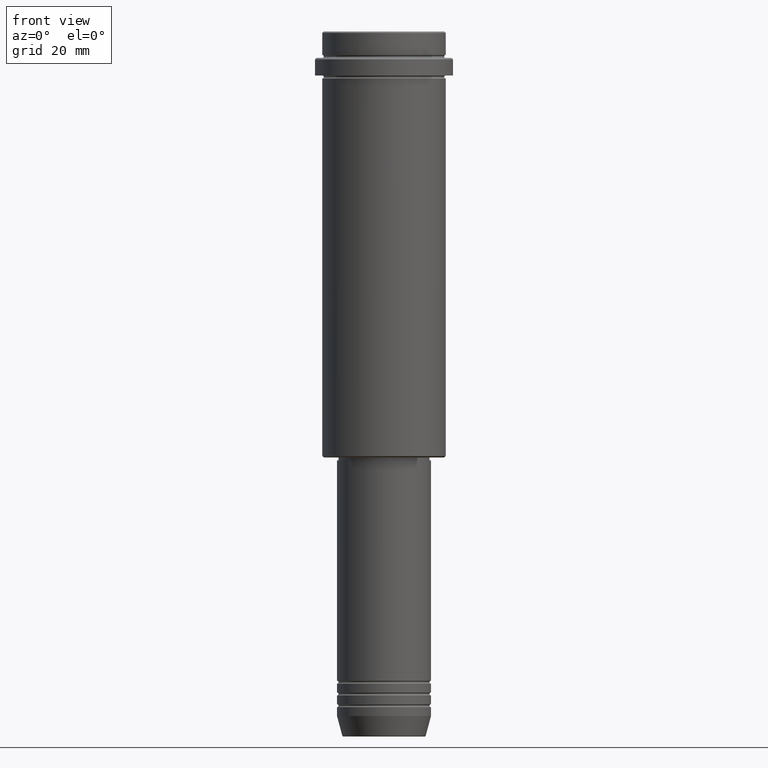
[diagram: clean part render]
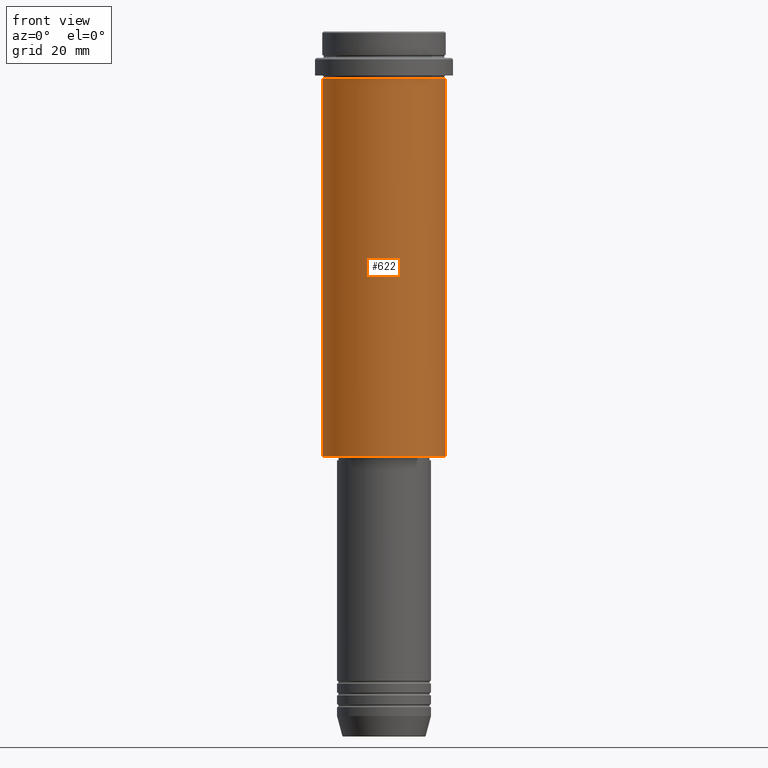
[diagram: same view with one face highlighted and labeled with its STEP entity id]
A machine part, front view. The second image highlights one B-rep face of the part: STEP entity #622.
In plain terms, the highlighted cylindrical surface (partial cylindrical patch) has radius 21 mm, axis along (-0, -0, 1).
Its self-contained STEP definition (entity closure, byte-faithful):
#2 = CYLINDRICAL_SURFACE ( 'NONE', #464, 21.00000000000000000 ) ;
#15 = DIRECTION ( 'NONE',  ( -0.000000000000000000, -0.000000000000000000, 1.000000000000000000 ) ) ;
#89 = VECTOR ( 'NONE', #1295, 1000.000000000000000 ) ;
#143 = EDGE_LOOP ( 'NONE', ( #727, #1248, #1281, #395 ) ) ;
#223 = VERTEX_POINT ( 'NONE', #1283 ) ;
#286 = EDGE_CURVE ( 'NONE', #1156, #672, #956, .T. ) ;
#339 = DIRECTION ( 'NONE',  ( -1.000000000000000000, 0.000000000000000000, 0.000000000000000000 ) ) ;
#349 = DIRECTION ( 'NONE',  ( -0.000000000000000000, -0.000000000000000000, 1.000000000000000000 ) ) ;
#353 = CARTESIAN_POINT ( 'NONE',  ( -21.00000000000000000, 2.571758278209441661E-15, -144.5000000000000000 ) ) ;
#395 = ORIENTED_EDGE ( 'NONE', *, *, #286, .F. ) ;
#398 = AXIS2_PLACEMENT_3D ( 'NONE', #400, #536, #705 ) ;
#400 = CARTESIAN_POINT ( 'NONE',  ( 0.000000000000000000, 0.000000000000000000, -16.00000000000000355 ) ) ;
#441 = CARTESIAN_POINT ( 'NONE',  ( 0.000000000000000000, 0.000000000000000000, 0.000000000000000000 ) ) ;
#449 = CARTESIAN_POINT ( 'NONE',  ( -21.00000000000000000, 2.571758278209441661E-15, 0.000000000000000000 ) ) ;
#454 = EDGE_CURVE ( 'NONE', #527, #223, #667, .T. ) ;
#464 = AXIS2_PLACEMENT_3D ( 'NONE', #441, #15, #862 ) ;
#527 = VERTEX_POINT ( 'NONE', #353 ) ;
#536 = DIRECTION ( 'NONE',  ( -0.000000000000000000, -0.000000000000000000, 1.000000000000000000 ) ) ;
#608 = CARTESIAN_POINT ( 'NONE',  ( -21.00000000000000000, 2.571758278209441661E-15, -16.00000000000000355 ) ) ;
#622 = ADVANCED_FACE ( 'NONE', ( #1079 ), #2, .T. ) ;
#667 = CIRCLE ( 'NONE', #869, 21.00000000000000000 ) ;
#672 = VERTEX_POINT ( 'NONE', #1030 ) ;
#705 = DIRECTION ( 'NONE',  ( 1.000000000000000000, 0.000000000000000000, 0.000000000000000000 ) ) ;
#727 = ORIENTED_EDGE ( 'NONE', *, *, #1336, .F. ) ;
#767 = CARTESIAN_POINT ( 'NONE',  ( 21.00000000000000000, 0.000000000000000000, 0.000000000000000000 ) ) ;
#809 = VECTOR ( 'NONE', #349, 1000.000000000000000 ) ;
#855 = LINE ( 'NONE', #767, #89 ) ;
#862 = DIRECTION ( 'NONE',  ( 1.000000000000000000, 0.000000000000000000, 0.000000000000000000 ) ) ;
#869 = AXIS2_PLACEMENT_3D ( 'NONE', #871, #883, #339 ) ;
#871 = CARTESIAN_POINT ( 'NONE',  ( 0.000000000000000000, 0.000000000000000000, -144.5000000000000000 ) ) ;
#883 = DIRECTION ( 'NONE',  ( -0.000000000000000000, -0.000000000000000000, 1.000000000000000000 ) ) ;
#956 = CIRCLE ( 'NONE', #398, 21.00000000000000000 ) ;
#1004 = EDGE_CURVE ( 'NONE', #223, #672, #855, .T. ) ;
#1030 = CARTESIAN_POINT ( 'NONE',  ( 21.00000000000000000, 0.000000000000000000, -16.00000000000000355 ) ) ;
#1073 = LINE ( 'NONE', #449, #809 ) ;
#1079 = FACE_OUTER_BOUND ( 'NONE', #143, .T. ) ;
#1156 = VERTEX_POINT ( 'NONE', #608 ) ;
#1248 = ORIENTED_EDGE ( 'NONE', *, *, #454, .T. ) ;
#1281 = ORIENTED_EDGE ( 'NONE', *, *, #1004, .T. ) ;
#1283 = CARTESIAN_POINT ( 'NONE',  ( 21.00000000000000000, 0.000000000000000000, -144.5000000000000000 ) ) ;
#1295 = DIRECTION ( 'NONE',  ( -0.000000000000000000, -0.000000000000000000, 1.000000000000000000 ) ) ;
#1336 = EDGE_CURVE ( 'NONE', #527, #1156, #1073, .T. ) ;